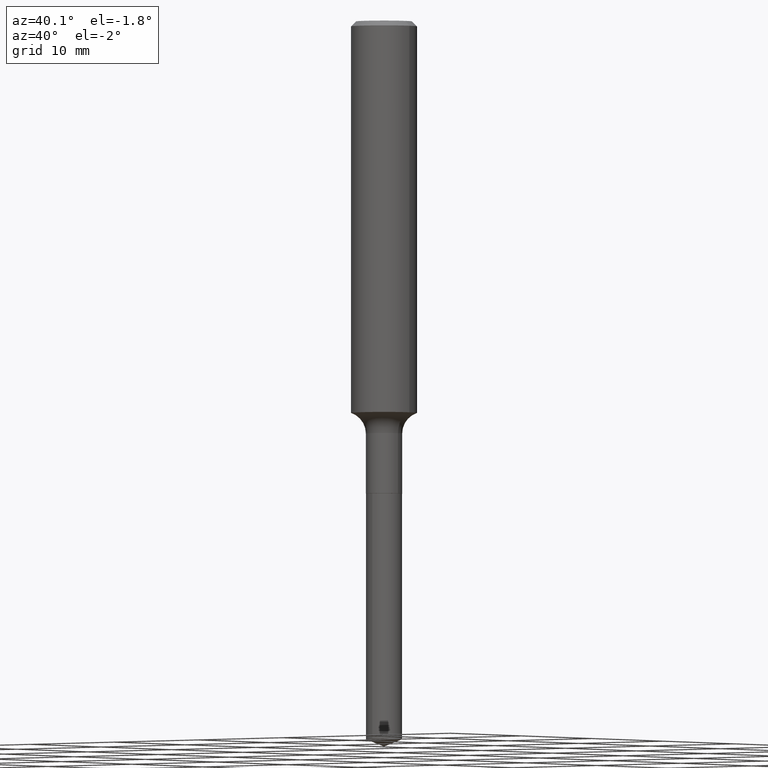
[diagram: clean part render]
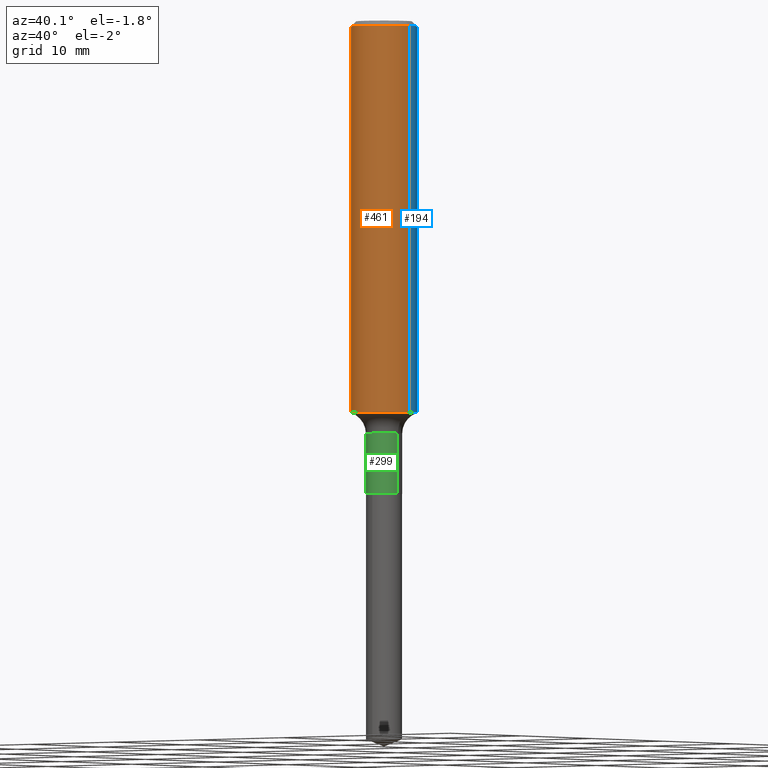
[diagram: same view with three faces highlighted in distinct colors, each labeled with its STEP entity id]
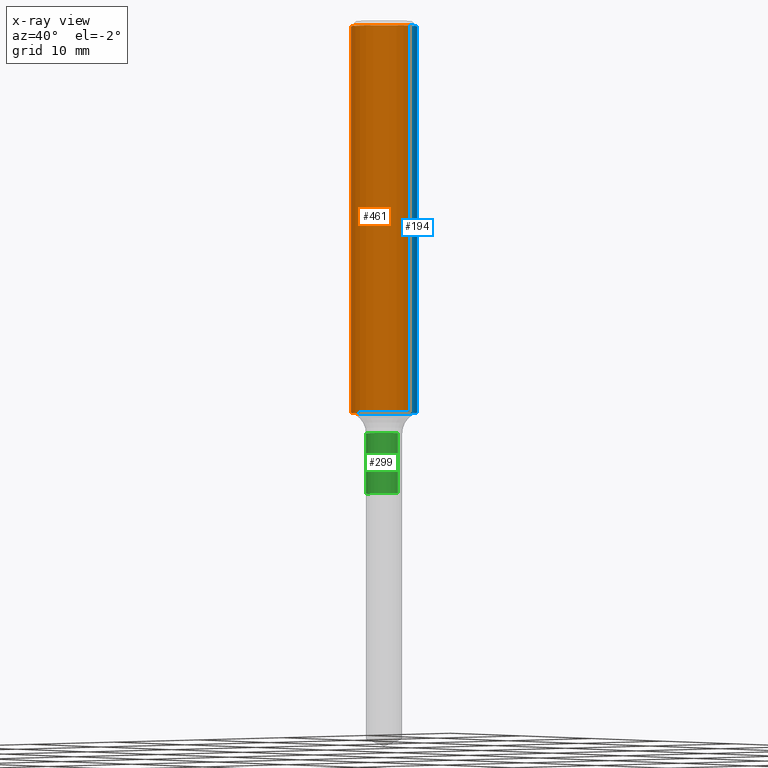
[diagram: x-ray of the same camera — body ghosted, the three highlighted faces saturated]
A machine part, auxiliary view with three faces highlighted in distinct colors.
The next image is the same camera in x-ray (body ghosted, the three faces saturated) — at least one of them is partly hidden behind the body in this view.
Their STEP definitions:

[orange] entity #461 — the highlighted cylindrical surface (edge-blend (fillet) strip) has radius 2.9997 mm, axis along (-0, 0, 1).
#1 = CARTESIAN_POINT ( 'NONE',  ( 0.000000000000000000, 0.000000000000000000, 0.000000000000000000 ) ) ;
#4 = AXIS2_PLACEMENT_3D ( 'NONE', #474, #397, #175 ) ;
#12 = AXIS2_PLACEMENT_3D ( 'NONE', #279, #356, #132 ) ;
#26 = VERTEX_POINT ( 'NONE', #438 ) ;
#32 = CARTESIAN_POINT ( 'NONE',  ( 0.1180999999999999966, -8.865394841523548556E-16, -0.01771500000000011954 ) ) ;
#33 = EDGE_CURVE ( 'NONE', #241, #349, #377, .T. ) ;
#55 = VECTOR ( 'NONE', #188, 39.37007874015748143 ) ;
#70 = EDGE_CURVE ( 'NONE', #26, #383, #207, .T. ) ;
#73 = ORIENTED_EDGE ( 'NONE', *, *, #166, .T. ) ;
#76 = LINE ( 'NONE', #308, #55 ) ;
#77 = ORIENTED_EDGE ( 'NONE', *, *, #33, .F. ) ;
#85 = DIRECTION ( 'NONE',  ( -2.445468806185136597E-29, 3.491481338843145583E-15, 1.000000000000000000 ) ) ;
#132 = DIRECTION ( 'NONE',  ( 1.000000000000000000, -6.982962677686270655E-15, 0.000000000000000000 ) ) ;
#136 = CARTESIAN_POINT ( 'NONE',  ( 0.1181000000000000799, -8.246878922347486570E-16, 5.758764772215004644E-30 ) ) ;
#137 = AXIS2_PLACEMENT_3D ( 'NONE', #1, #85, #192 ) ;
#166 = EDGE_CURVE ( 'NONE', #383, #349, #478, .T. ) ;
#170 = EDGE_LOOP ( 'NONE', ( #230, #437, #73, #77 ) ) ;
#175 = DIRECTION ( 'NONE',  ( 1.000000000000000000, -6.982962677686266711E-15, 0.000000000000000000 ) ) ;
#188 = DIRECTION ( 'NONE',  ( -2.445468806185136877E-29, 3.491481338843145188E-15, 1.000000000000000000 ) ) ;
#192 = DIRECTION ( 'NONE',  ( 1.000000000000000000, -6.982962677686266711E-15, 4.876176775795936353E-29 ) ) ;
#207 = CIRCLE ( 'NONE', #12, 0.1181000000000001632 ) ;
#230 = ORIENTED_EDGE ( 'NONE', *, *, #402, .F. ) ;
#241 = VERTEX_POINT ( 'NONE', #484 ) ;
#269 = FACE_OUTER_BOUND ( 'NONE', #170, .T. ) ;
#279 = CARTESIAN_POINT ( 'NONE',  ( 3.429927413575000443E-29, -4.897027321630464566E-15, -1.402564369212131457 ) ) ;
#308 = CARTESIAN_POINT ( 'NONE',  ( -0.1181000000000000799, 8.391509709326788873E-16, -5.809262341591047988E-30 ) ) ;
#345 = CYLINDRICAL_SURFACE ( 'NONE', #137, 0.1181000000000000799 ) ;
#349 = VERTEX_POINT ( 'NONE', #32 ) ;
#356 = DIRECTION ( 'NONE',  ( -2.445468806185136597E-29, 3.491481338843145583E-15, 1.000000000000000000 ) ) ;
#364 = DIRECTION ( 'NONE',  ( -2.445468806185136877E-29, 3.491481338843145188E-15, 1.000000000000000000 ) ) ;
#377 = CIRCLE ( 'NONE', #4, 0.1180999999999999966 ) ;
#378 = VECTOR ( 'NONE', #364, 39.37007874015748143 ) ;
#379 = CARTESIAN_POINT ( 'NONE',  ( 0.1181000000000001632, -5.721715213865214406E-15, -1.402564369212131457 ) ) ;
#383 = VERTEX_POINT ( 'NONE', #379 ) ;
#397 = DIRECTION ( 'NONE',  ( -2.445468806185136597E-29, 3.491481338843145583E-15, 1.000000000000000000 ) ) ;
#402 = EDGE_CURVE ( 'NONE', #26, #241, #76, .T. ) ;
#437 = ORIENTED_EDGE ( 'NONE', *, *, #70, .T. ) ;
#438 = CARTESIAN_POINT ( 'NONE',  ( -0.1181000000000001632, -4.057876350697784791E-15, -1.402564369212131457 ) ) ;
#461 = ADVANCED_FACE ( 'NONE', ( #269 ), #345, .T. ) ;
#474 = CARTESIAN_POINT ( 'NONE',  ( 4.332147990156998495E-31, -6.185159191760674092E-17, -0.01771500000000011954 ) ) ;
#478 = LINE ( 'NONE', #136, #378 ) ;
#484 = CARTESIAN_POINT ( 'NONE',  ( -0.1180999999999999966, -1.640288485841356199E-15, -0.01771500000000011954 ) ) ;

[blue] entity #194 — the highlighted cylindrical surface (edge-blend (fillet) strip) has radius 2.9997 mm, axis along (-0, 0, 1).
#5 = AXIS2_PLACEMENT_3D ( 'NONE', #176, #334, #301 ) ;
#26 = VERTEX_POINT ( 'NONE', #438 ) ;
#29 = FACE_OUTER_BOUND ( 'NONE', #275, .T. ) ;
#32 = CARTESIAN_POINT ( 'NONE',  ( 0.1180999999999999966, -8.865394841523548556E-16, -0.01771500000000011954 ) ) ;
#55 = VECTOR ( 'NONE', #188, 39.37007874015748143 ) ;
#56 = ORIENTED_EDGE ( 'NONE', *, *, #158, .T. ) ;
#64 = DIRECTION ( 'NONE',  ( 1.000000000000000000, -6.982962677686270655E-15, 0.000000000000000000 ) ) ;
#76 = LINE ( 'NONE', #308, #55 ) ;
#136 = CARTESIAN_POINT ( 'NONE',  ( 0.1181000000000000799, -8.246878922347486570E-16, 5.758764772215004644E-30 ) ) ;
#158 = EDGE_CURVE ( 'NONE', #383, #26, #321, .T. ) ;
#166 = EDGE_CURVE ( 'NONE', #383, #349, #478, .T. ) ;
#173 = AXIS2_PLACEMENT_3D ( 'NONE', #391, #363, #64 ) ;
#176 = CARTESIAN_POINT ( 'NONE',  ( 0.000000000000000000, 0.000000000000000000, 0.000000000000000000 ) ) ;
#188 = DIRECTION ( 'NONE',  ( -2.445468806185136877E-29, 3.491481338843145188E-15, 1.000000000000000000 ) ) ;
#193 = ORIENTED_EDGE ( 'NONE', *, *, #166, .F. ) ;
#194 = ADVANCED_FACE ( 'NONE', ( #29 ), #216, .T. ) ;
#215 = DIRECTION ( 'NONE',  ( 1.000000000000000000, -6.982962677686266711E-15, 0.000000000000000000 ) ) ;
#216 = CYLINDRICAL_SURFACE ( 'NONE', #5, 0.1181000000000000799 ) ;
#241 = VERTEX_POINT ( 'NONE', #484 ) ;
#257 = ORIENTED_EDGE ( 'NONE', *, *, #402, .T. ) ;
#275 = EDGE_LOOP ( 'NONE', ( #56, #257, #295, #193 ) ) ;
#280 = CIRCLE ( 'NONE', #358, 0.1180999999999999966 ) ;
#295 = ORIENTED_EDGE ( 'NONE', *, *, #304, .F. ) ;
#301 = DIRECTION ( 'NONE',  ( 1.000000000000000000, -6.982962677686266711E-15, 4.876176775795936353E-29 ) ) ;
#304 = EDGE_CURVE ( 'NONE', #349, #241, #280, .T. ) ;
#308 = CARTESIAN_POINT ( 'NONE',  ( -0.1181000000000000799, 8.391509709326788873E-16, -5.809262341591047988E-30 ) ) ;
#321 = CIRCLE ( 'NONE', #173, 0.1181000000000001632 ) ;
#334 = DIRECTION ( 'NONE',  ( -2.445468806185136597E-29, 3.491481338843145583E-15, 1.000000000000000000 ) ) ;
#349 = VERTEX_POINT ( 'NONE', #32 ) ;
#358 = AXIS2_PLACEMENT_3D ( 'NONE', #410, #368, #215 ) ;
#363 = DIRECTION ( 'NONE',  ( -2.445468806185136597E-29, 3.491481338843145583E-15, 1.000000000000000000 ) ) ;
#364 = DIRECTION ( 'NONE',  ( -2.445468806185136877E-29, 3.491481338843145188E-15, 1.000000000000000000 ) ) ;
#368 = DIRECTION ( 'NONE',  ( -2.445468806185136597E-29, 3.491481338843145583E-15, 1.000000000000000000 ) ) ;
#378 = VECTOR ( 'NONE', #364, 39.37007874015748143 ) ;
#379 = CARTESIAN_POINT ( 'NONE',  ( 0.1181000000000001632, -5.721715213865214406E-15, -1.402564369212131457 ) ) ;
#383 = VERTEX_POINT ( 'NONE', #379 ) ;
#391 = CARTESIAN_POINT ( 'NONE',  ( 3.429927413575000443E-29, -4.897027321630464566E-15, -1.402564369212131457 ) ) ;
#402 = EDGE_CURVE ( 'NONE', #26, #241, #76, .T. ) ;
#410 = CARTESIAN_POINT ( 'NONE',  ( 4.332147990156998495E-31, -6.185159191760674092E-17, -0.01771500000000011954 ) ) ;
#438 = CARTESIAN_POINT ( 'NONE',  ( -0.1181000000000001632, -4.057876350697784791E-15, -1.402564369212131457 ) ) ;
#478 = LINE ( 'NONE', #136, #378 ) ;
#484 = CARTESIAN_POINT ( 'NONE',  ( -0.1180999999999999966, -1.640288485841356199E-15, -0.01771500000000011954 ) ) ;

[green] entity #299 — the highlighted cylindrical surface (edge-blend (fillet) strip) has radius 1.6497 mm, axis along (-0, 0, 1).
#14 = CARTESIAN_POINT ( 'NONE',  ( 0.06494999999999999385, -6.361129851238325562E-15, -1.692000000000000171 ) ) ;
#66 = AXIS2_PLACEMENT_3D ( 'NONE', #178, #69, #261 ) ;
#69 = DIRECTION ( 'NONE',  ( -2.445468806185136597E-29, 3.491481338843145583E-15, 1.000000000000000000 ) ) ;
#71 = DIRECTION ( 'NONE',  ( -2.445468806185136597E-29, 3.491481338843145583E-15, 1.000000000000000000 ) ) ;
#83 = VERTEX_POINT ( 'NONE', #14 ) ;
#106 = FACE_OUTER_BOUND ( 'NONE', #238, .T. ) ;
#119 = ORIENTED_EDGE ( 'NONE', *, *, #348, .T. ) ;
#139 = EDGE_CURVE ( 'NONE', #492, #248, #249, .T. ) ;
#155 = VERTEX_POINT ( 'NONE', #331 ) ;
#177 = CARTESIAN_POINT ( 'NONE',  ( 4.137733220065251539E-29, -5.907586425322602368E-15, -1.692000000000000171 ) ) ;
#178 = CARTESIAN_POINT ( 'NONE',  ( 0.000000000000000000, 0.000000000000000000, 0.000000000000000000 ) ) ;
#179 = CIRCLE ( 'NONE', #262, 0.06494999999999996609 ) ;
#182 = CARTESIAN_POINT ( 'NONE',  ( 3.610734692332354436E-29, -5.155172196801903565E-15, -1.476499999999999924 ) ) ;
#195 = CARTESIAN_POINT ( 'NONE',  ( 0.06494999999999997997, -4.535434259157228974E-16, 3.167076815879459014E-30 ) ) ;
#208 = CIRCLE ( 'NONE', #332, 0.06494999999999999385 ) ;
#231 = LINE ( 'NONE', #195, #271 ) ;
#238 = EDGE_LOOP ( 'NONE', ( #490, #119, #362, #273 ) ) ;
#248 = VERTEX_POINT ( 'NONE', #253 ) ;
#249 = LINE ( 'NONE', #284, #312 ) ;
#253 = CARTESIAN_POINT ( 'NONE',  ( -0.06494999999999996609, -5.069881804186068235E-15, -1.476499999999999924 ) ) ;
#261 = DIRECTION ( 'NONE',  ( 1.000000000000000000, -6.982962677686266711E-15, 4.876176775795935232E-29 ) ) ;
#262 = AXIS2_PLACEMENT_3D ( 'NONE', #182, #340, #344 ) ;
#271 = VECTOR ( 'NONE', #450, 39.37007874015748143 ) ;
#273 = ORIENTED_EDGE ( 'NONE', *, *, #354, .F. ) ;
#284 = CARTESIAN_POINT ( 'NONE',  ( -0.06494999999999997997, 4.614975068761849284E-16, -3.194848341120560204E-30 ) ) ;
#299 = ADVANCED_FACE ( 'NONE', ( #106 ), #409, .T. ) ;
#312 = VECTOR ( 'NONE', #404, 39.37007874015748143 ) ;
#331 = CARTESIAN_POINT ( 'NONE',  ( 0.06494999999999996609, -5.608715622717626758E-15, -1.476499999999999924 ) ) ;
#332 = AXIS2_PLACEMENT_3D ( 'NONE', #177, #71, #370 ) ;
#340 = DIRECTION ( 'NONE',  ( -2.445468806185136597E-29, 3.491481338843145583E-15, 1.000000000000000000 ) ) ;
#344 = DIRECTION ( 'NONE',  ( 1.000000000000000000, -6.982962677686271444E-15, 0.000000000000000000 ) ) ;
#348 = EDGE_CURVE ( 'NONE', #492, #83, #208, .T. ) ;
#354 = EDGE_CURVE ( 'NONE', #248, #155, #179, .T. ) ;
#362 = ORIENTED_EDGE ( 'NONE', *, *, #366, .T. ) ;
#366 = EDGE_CURVE ( 'NONE', #83, #155, #231, .T. ) ;
#370 = DIRECTION ( 'NONE',  ( 1.000000000000000000, -6.982962677686268288E-15, 0.000000000000000000 ) ) ;
#404 = DIRECTION ( 'NONE',  ( -2.445468806185136877E-29, 3.491481338843145188E-15, 1.000000000000000000 ) ) ;
#409 = CYLINDRICAL_SURFACE ( 'NONE', #66, 0.06494999999999997997 ) ;
#416 = CARTESIAN_POINT ( 'NONE',  ( -0.06494999999999999385, -5.069881804186068235E-15, -1.692000000000000171 ) ) ;
#450 = DIRECTION ( 'NONE',  ( -2.445468806185136877E-29, 3.491481338843145188E-15, 1.000000000000000000 ) ) ;
#490 = ORIENTED_EDGE ( 'NONE', *, *, #139, .F. ) ;
#492 = VERTEX_POINT ( 'NONE', #416 ) ;